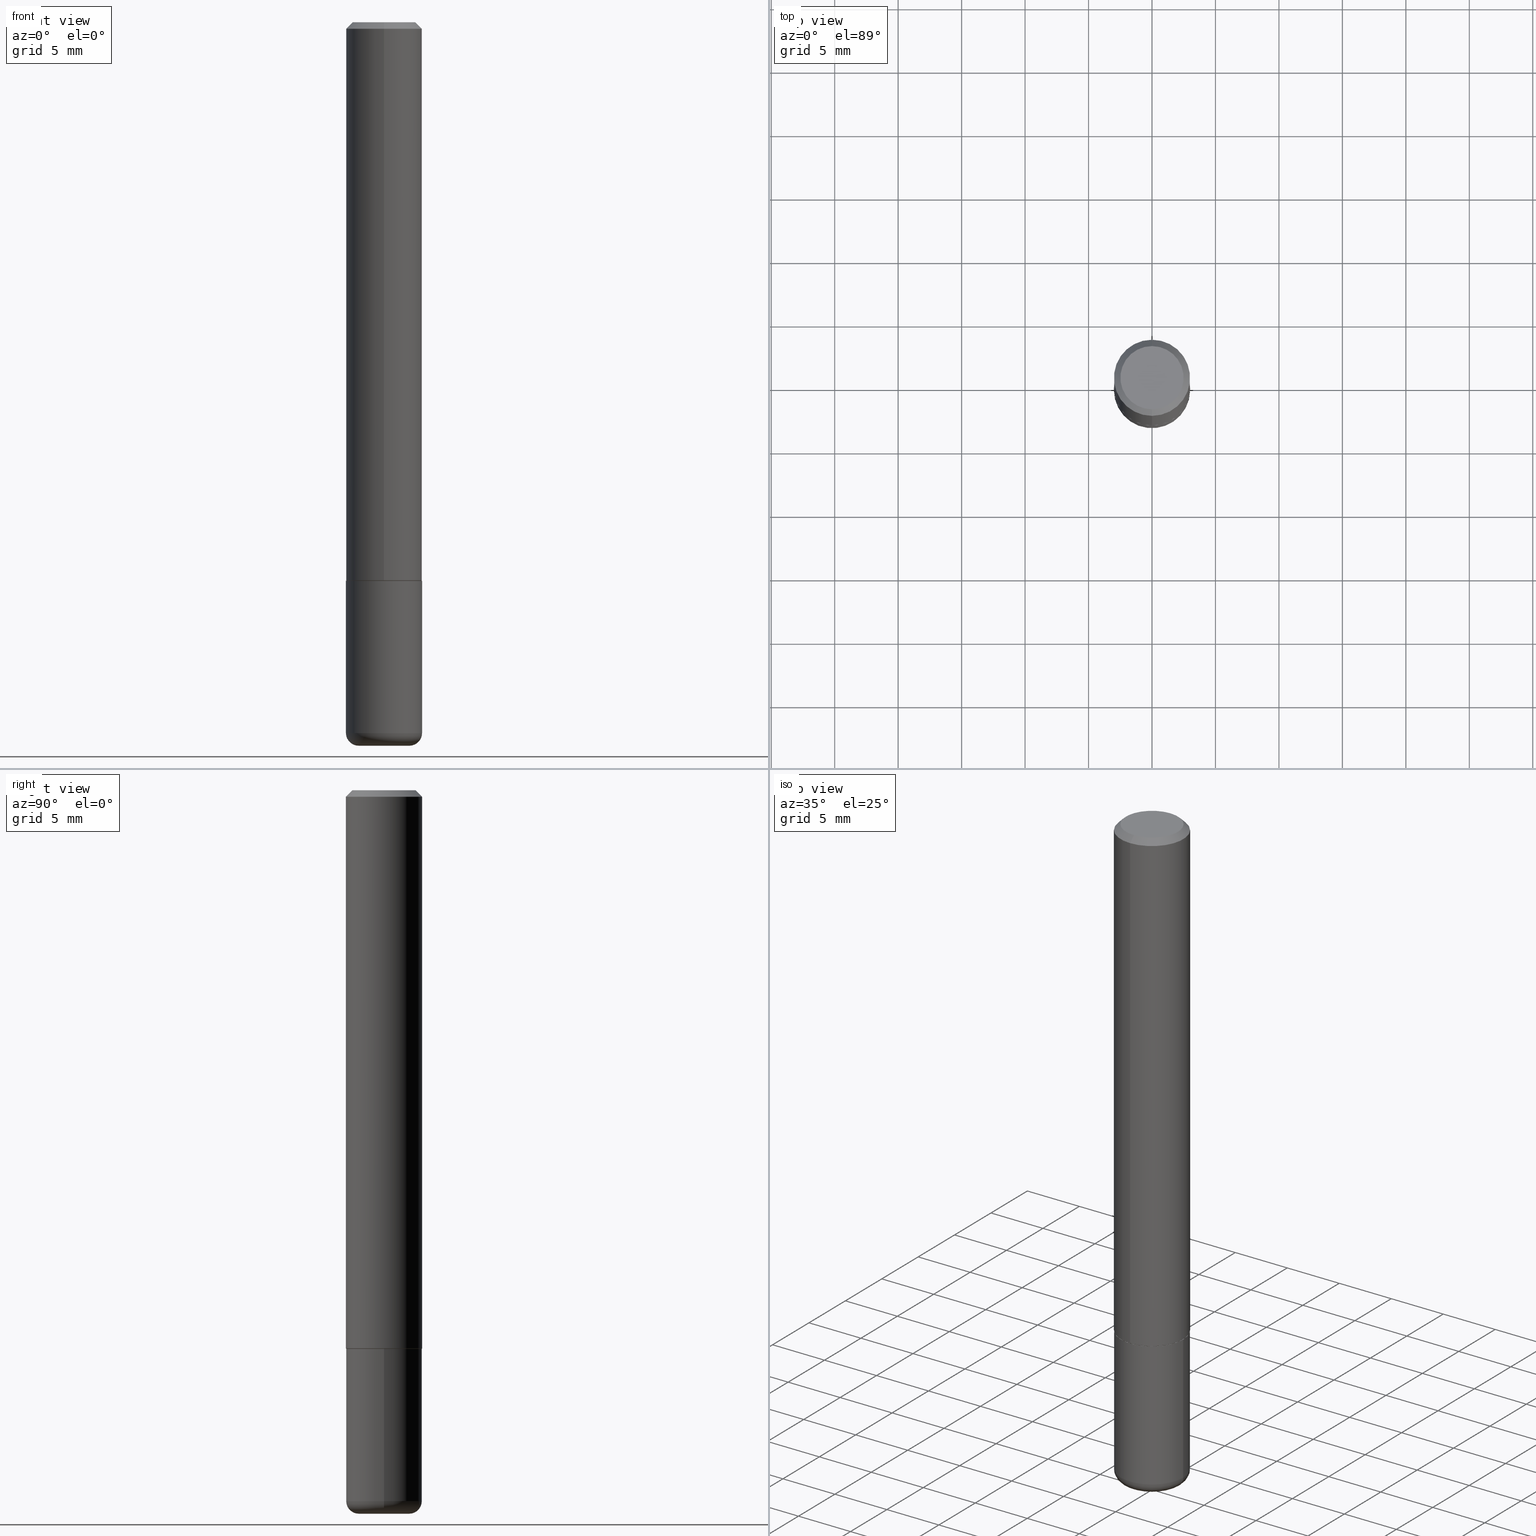
[diagram: canonical four-view strip — front | top / right | iso, engineering-drawing reading convention]
A machine part, canonical four-view strip (front | top / right | iso — engineering-drawing reading convention). The complete STEP part file that produces these views, byte-faithful:
ISO-10303-21;
HEADER;
FILE_DESCRIPTION (( 'STEP AP203' ),
    '1' );
FILE_NAME ('46855.STEP',
    '2024-03-05T04:08:07',
    ( '' ),
    ( '' ),
    'SwSTEP 2.0',
    'SolidWorks 2023',
    '' );
FILE_SCHEMA (( 'CONFIG_CONTROL_DESIGN' ));
ENDSEC;

DATA;
#1 = LENGTH_MEASURE_WITH_UNIT ( LENGTH_MEASURE( 0.02539999999999999897 ), #71 );
#2 = TOROIDAL_SURFACE ( 'NONE', #266, 0.07870000000000000606, 0.03939999999999978936 ) ;
#3 = ORGANIZATION ( 'UNSPECIFIED', 'UNSPECIFIED', '' ) ;
#4 = PERSON_AND_ORGANIZATION_ROLE ( 'creator' ) ;
#5 = FACE_OUTER_BOUND ( 'NONE', #258, .T. ) ;
#6 = DIRECTION ( 'NONE',  ( -1.000000000000000000, 6.982962677686265922E-15, -4.876176775795935793E-29 ) ) ;
#7 = CIRCLE ( 'NONE', #339, 0.09810000000000038134 ) ;
#8 = VECTOR ( 'NONE', #156, 39.37007874015748143 ) ;
#9 = PERSON_AND_ORGANIZATION ( #19, #3 ) ;
#10 = DIRECTION ( 'NONE',  ( 7.105427357601001859E-15, 1.000000000000000000, -3.491481338843145583E-15 ) ) ;
#11 = ADVANCED_FACE ( 'NONE', ( #38 ), #133, .F. ) ;
#12 = CARTESIAN_POINT ( 'NONE',  ( -0.1181000000000000105, 8.391509709326783943E-16, -5.809262341591044484E-30 ) ) ;
#13 = CYLINDRICAL_SURFACE ( 'NONE', #270, 0.1181000000000000105 ) ;
#14 = CC_DESIGN_PERSON_AND_ORGANIZATION_ASSIGNMENT ( #9, #171, ( #367 ) ) ;
#15 = AXIS2_PLACEMENT_3D ( 'NONE', #41, #44, #75 ) ;
#16 = DIRECTION ( 'NONE',  ( -2.437558740731586288E-29, 3.502809002785596045E-15, 1.000000000000000000 ) ) ;
#17 = DIRECTION ( 'NONE',  ( -6.982962677686265922E-15, -1.000000000000000000, 3.502809002785596439E-15 ) ) ;
#18 = ORIENTED_EDGE ( 'NONE', *, *, #70, .F. ) ;
#19 = PERSON ( 'UNSPECIFIED', 'UNSPECIFIED', 'UNSPECIFIED', ('UNSPECIFIED'), ('UNSPECIFIED'), ('UNSPECIFIED') ) ;
#20 = FACE_OUTER_BOUND ( 'NONE', #187, .T. ) ;
#21 = ORIENTED_EDGE ( 'NONE', *, *, #144, .T. ) ;
#22 = DIRECTION ( 'NONE',  ( -2.437558740731586288E-29, 3.502809002785596045E-15, 1.000000000000000000 ) ) ;
#23 = CIRCLE ( 'NONE', #401, 0.03939999999999978936 ) ;
#24 = VERTEX_POINT ( 'NONE', #33 ) ;
#25 = CARTESIAN_POINT ( 'NONE',  ( 0.07870000000000000606, -8.384792435231810596E-15, -2.244099999999999540 ) ) ;
#26 = DIRECTION ( 'NONE',  ( 1.000000000000000000, -6.982962677686269077E-15, 0.000000000000000000 ) ) ;
#27 = ORIENTED_EDGE ( 'NONE', *, *, #159, .T. ) ;
#28 = ADVANCED_FACE ( 'NONE', ( #5 ), #32, .T. ) ;
#29 = AXIS2_PLACEMENT_3D ( 'NONE', #308, #139, #305 ) ;
#30 = APPLICATION_PROTOCOL_DEFINITION ( 'international standard', 'config_control_design', 1994, #237 ) ;
#31 = MECHANICAL_CONTEXT ( 'NONE', #237, 'mechanical' ) ;
#32 = CYLINDRICAL_SURFACE ( 'NONE', #34, 0.1181000000000000105 ) ;
#33 = CARTESIAN_POINT ( 'NONE',  ( 7.548582654578869366E-16, 0.09810000000000038134, -7.394859809198522899E-16 ) ) ;
#34 = AXIS2_PLACEMENT_3D ( 'NONE', #297, #269, #167 ) ;
#35 = ADVANCED_FACE ( 'NONE', ( #265 ), #103, .T. ) ;
#36 = AXIS2_PLACEMENT_3D ( 'NONE', #90, #315, #186 ) ;
#37 = PERSON_AND_ORGANIZATION ( #19, #3 ) ;
#38 = FACE_OUTER_BOUND ( 'NONE', #64, .T. ) ;
#39 = DIRECTION ( 'NONE',  ( 2.437558740731586288E-29, -3.502809002785596045E-15, -1.000000000000000000 ) ) ;
#40 = CC_DESIGN_PERSON_AND_ORGANIZATION_ASSIGNMENT ( #395, #244, ( #383 ) ) ;
#41 = CARTESIAN_POINT ( 'NONE',  ( 4.236285612954512392E-29, -6.048293123277981078E-15, -1.732299999999999951 ) ) ;
#42 = VERTEX_POINT ( 'NONE', #145 ) ;
#43 = APPROVAL_ROLE ( '' ) ;
#44 = DIRECTION ( 'NONE',  ( -2.445468806185136597E-29, 3.491481338843145583E-15, 1.000000000000000000 ) ) ;
#45 = PERSON_AND_ORGANIZATION ( #19, #3 ) ;
#46 = FACE_OUTER_BOUND ( 'NONE', #194, .T. ) ;
#47 = ADVANCED_FACE ( 'NONE', ( #149 ), #13, .T. ) ;
#48 = SHAPE_DEFINITION_REPRESENTATION ( #282, #361 ) ;
#49 = FACE_OUTER_BOUND ( 'NONE', #158, .T. ) ;
#50 = VERTEX_POINT ( 'NONE', #78 ) ;
#51 = LOCAL_TIME ( 23, 8, 7.000000000000000000, #278 ) ;
#52 = DIRECTION ( 'NONE',  ( -4.937700262165053702E-15, -0.7071067811866175168, 0.7071067811864775177 ) ) ;
#53 = CARTESIAN_POINT ( 'NONE',  ( 0.07870000000000000606, -8.247228070481392959E-15, -2.204700000000000326 ) ) ;
#54 = EDGE_LOOP ( 'NONE', ( #223, #100, #241, #174 ) ) ;
#55 = PRODUCT_RELATED_PRODUCT_CATEGORY ( 'detail', '', ( #405 ) ) ;
#56 = DIRECTION ( 'NONE',  ( 2.437558740731586288E-29, -3.502809002785596045E-15, -1.000000000000000000 ) ) ;
#57 = ORIENTED_EDGE ( 'NONE', *, *, #84, .T. ) ;
#58 = CARTESIAN_POINT ( 'NONE',  ( 5.487876547960064752E-29, -7.835233272497900762E-15, -2.244099999999999540 ) ) ;
#59 = AXIS2_PLACEMENT_3D ( 'NONE', #216, #119, #412 ) ;
#60 = VERTEX_POINT ( 'NONE', #247 ) ;
#61 = CARTESIAN_POINT ( 'NONE',  ( -0.1180999999999998995, -6.858517936814806506E-15, -2.204700000000000326 ) ) ;
#62 = ORIENTED_EDGE ( 'NONE', *, *, #390, .F. ) ;
#63 = CARTESIAN_POINT ( 'NONE',  ( 4.222583006569326583E-29, -6.067916035525488770E-15, -1.732299999999999951 ) ) ;
#64 = EDGE_LOOP ( 'NONE', ( #397, #112 ) ) ;
#65 = DIRECTION ( 'NONE',  ( 0.000000000000000000, 0.000000000000000000, 1.000000000000000000 ) ) ;
#66 = CIRCLE ( 'NONE', #302, 0.09810000000000038134 ) ;
#67 = LOCAL_TIME ( 23, 8, 7.000000000000000000, #360 ) ;
#68 = DIRECTION ( 'NONE',  ( 1.000000000000000000, 0.000000000000000000, 0.000000000000000000 ) ) ;
#69 = PERSON_AND_ORGANIZATION ( #19, #3 ) ;
#70 = EDGE_CURVE ( 'NONE', #225, #287, #108, .T. ) ;
#71 =( LENGTH_UNIT ( ) NAMED_UNIT ( * ) SI_UNIT ( $, .METRE. ) );
#72 = CONICAL_SURFACE ( 'NONE', #414, 0.1171000000000000513, 0.7853981633975507526 ) ;
#73 = DATE_AND_TIME ( #202, #79 ) ;
#74 = EDGE_CURVE ( 'NONE', #24, #225, #242, .T. ) ;
#75 = DIRECTION ( 'NONE',  ( 1.000000000000000000, -6.982962677686262766E-15, 0.000000000000000000 ) ) ;
#76 = ORIENTED_EDGE ( 'NONE', *, *, #226, .T. ) ;
#77 = PERSON_AND_ORGANIZATION ( #19, #3 ) ;
#78 = CARTESIAN_POINT ( 'NONE',  ( -7.416198335591035884E-16, -0.09810000000000038134, -5.223485457331552221E-17 ) ) ;
#79 = LOCAL_TIME ( 23, 8, 7.000000000000000000, #306 ) ;
#80 = DATE_AND_TIME ( #148, #51 ) ;
#81 = PLANE ( 'NONE',  #285 ) ;
#82 = APPROVAL_STATUS ( 'not_yet_approved' ) ;
#83 = CARTESIAN_POINT ( 'NONE',  ( 9.649330213878425862E-45, -1.386623435129200920E-30, -3.958604177465838290E-16 ) ) ;
#84 = EDGE_CURVE ( 'NONE', #319, #42, #199, .T. ) ;
#85 = ORIENTED_EDGE ( 'NONE', *, *, #416, .F. ) ;
#86 = DESIGN_CONTEXT ( 'detailed design', #188, 'design' ) ;
#87 = DIRECTION ( 'NONE',  ( -6.982962677686265922E-15, -1.000000000000000000, 3.505890868245044514E-15 ) ) ;
#88 = CLOSED_SHELL ( 'NONE', ( #398, #262, #245, #92, #35, #317, #182, #11 ) ) ;
#89 = AXIS2_PLACEMENT_3D ( 'NONE', #310, #56, #349 ) ;
#90 = CARTESIAN_POINT ( 'NONE',  ( 4.220145447828595278E-29, -6.064413226522701602E-15, -1.731299999999999839 ) ) ;
#91 = ORIENTED_EDGE ( 'NONE', *, *, #135, .F. ) ;
#92 = ADVANCED_FACE ( 'NONE', ( #46 ), #296, .T. ) ;
#93 = CARTESIAN_POINT ( 'NONE',  ( 9.649330213878425862E-45, -1.386623435129200920E-30, -3.958604177465838290E-16 ) ) ;
#94 = ORIENTED_EDGE ( 'NONE', *, *, #169, .T. ) ;
#95 = LINE ( 'NONE', #406, #8 ) ;
#96 = ORIENTED_EDGE ( 'NONE', *, *, #203, .F. ) ;
#97 = AXIS2_PLACEMENT_3D ( 'NONE', #179, #362, #6 ) ;
#98 = DIRECTION ( 'NONE',  ( -6.982962677686266711E-15, -1.000000000000000000, 4.665837734695579875E-15 ) ) ;
#99 = ADVANCED_FACE ( 'NONE', ( #111 ), #129, .T. ) ;
#100 = ORIENTED_EDGE ( 'NONE', *, *, #254, .T. ) ;
#101 = DIRECTION ( 'NONE',  ( -2.437558740731586288E-29, 3.502809002785596045E-15, 1.000000000000000000 ) ) ;
#102 = EDGE_LOOP ( 'NONE', ( #193, #163, #327, #215 ) ) ;
#103 = CYLINDRICAL_SURFACE ( 'NONE', #140, 0.1181000000000001632 ) ;
#104 = CC_DESIGN_DATE_AND_TIME_ASSIGNMENT ( #399, #209, ( #367 ) ) ;
#105 = PERSON_AND_ORGANIZATION ( #19, #3 ) ;
#106 = PERSON_AND_ORGANIZATION_ROLE ( 'design_owner' ) ;
#107 = EDGE_CURVE ( 'NONE', #153, #378, #277, .T. ) ;
#108 = CIRCLE ( 'NONE', #382, 0.1181000000000000383 ) ;
#109 = LINE ( 'NONE', #200, #259 ) ;
#110 = CALENDAR_DATE ( 2024, 4, 3 ) ;
#111 = FACE_OUTER_BOUND ( 'NONE', #120, .T. ) ;
#112 = ORIENTED_EDGE ( 'NONE', *, *, #195, .T. ) ;
#113 = LINE ( 'NONE', #365, #333 ) ;
#114 = AXIS2_PLACEMENT_3D ( 'NONE', #213, #10, #400 ) ;
#115 = DATE_TIME_ROLE ( 'creation_date' ) ;
#116 = ADVANCED_FACE ( 'NONE', ( #49 ), #81, .F. ) ;
#117 = CARTESIAN_POINT ( 'NONE',  ( 8.246878922347486570E-16, 0.1180999999999999689, -0.02000000000000048961 ) ) ;
#118 = DIRECTION ( 'NONE',  ( -2.445468806185136597E-29, 3.491481338843145583E-15, 1.000000000000000000 ) ) ;
#119 = DIRECTION ( 'NONE',  ( -2.437558740731586288E-29, 3.502809002785596045E-15, 1.000000000000000000 ) ) ;
#120 = EDGE_LOOP ( 'NONE', ( #381, #332, #280, #325 ) ) ;
#121 = APPROVAL ( #165, 'UNSPECIFIED' ) ;
#122 = CIRCLE ( 'NONE', #322, 0.1180999999999999966 ) ;
#123 = DIRECTION ( 'NONE',  ( -6.982962677686265922E-15, -1.000000000000000000, 4.626330217890357503E-15 ) ) ;
#124 = ORIENTED_EDGE ( 'NONE', *, *, #84, .F. ) ;
#125 = ORIENTED_EDGE ( 'NONE', *, *, #107, .F. ) ;
#126 = DIRECTION ( 'NONE',  ( 5.024295867788576727E-15, 0.7071067811866224018, 0.7071067811864726327 ) ) ;
#127 = ORIENTED_EDGE ( 'NONE', *, *, #177, .F. ) ;
#128 = MANIFOLD_SOLID_BREP ( 'Body-Move/Copy2[1]', #295 ) ;
#129 = TOROIDAL_SURFACE ( 'NONE', #359, 0.07870000000000000606, 0.03939999999999978936 ) ;
#130 = CARTESIAN_POINT ( 'NONE',  ( 0.000000000000000000, 0.000000000000000000, 0.000000000000000000 ) ) ;
#131 = CIRCLE ( 'NONE', #348, 0.07870000000000000606 ) ;
#132 = ORIENTED_EDGE ( 'NONE', *, *, #191, .F. ) ;
#133 = PLANE ( 'NONE',  #196 ) ;
#134 = CALENDAR_DATE ( 2024, 4, 3 ) ;
#135 = EDGE_CURVE ( 'NONE', #24, #50, #7, .T. ) ;
#136 = AXIS2_PLACEMENT_3D ( 'NONE', #402, #39, #366 ) ;
#137 = DATE_AND_TIME ( #134, #168 ) ;
#138 = APPROVAL ( #82, 'UNSPECIFIED' ) ;
#139 = DIRECTION ( 'NONE',  ( -2.445468806185136597E-29, 3.491481338843145583E-15, 1.000000000000000000 ) ) ;
#140 = AXIS2_PLACEMENT_3D ( 'NONE', #229, #234, #292 ) ;
#141 = CARTESIAN_POINT ( 'NONE',  ( 4.236285612954512392E-29, -6.048293123277981078E-15, -1.732299999999999951 ) ) ;
#142 = DATE_AND_TIME ( #110, #251 ) ;
#143 = DIRECTION ( 'NONE',  ( -4.851104656540959542E-15, -0.7071067811865493491, -0.7071067811865454633 ) ) ;
#144 = EDGE_CURVE ( 'NONE', #42, #319, #146, .T. ) ;
#145 = CARTESIAN_POINT ( 'NONE',  ( 0.1181000000000000383, -6.872981015512729341E-15, -1.732299999999999951 ) ) ;
#146 = CIRCLE ( 'NONE', #227, 0.1181000000000000383 ) ;
#147 = AXIS2_PLACEMENT_3D ( 'NONE', #391, #357, #268 ) ;
#148 = CALENDAR_DATE ( 2024, 4, 3 ) ;
#149 = FACE_OUTER_BOUND ( 'NONE', #363, .T. ) ;
#150 = ADVANCED_FACE ( 'NONE', ( #336 ), #337, .T. ) ;
#151 = CARTESIAN_POINT ( 'NONE',  ( 5.391525076996371277E-29, -7.697668907747483125E-15, -2.204700000000000326 ) ) ;
#152 = CARTESIAN_POINT ( 'NONE',  ( 8.391509709327013699E-16, 0.1180999999999942790, -1.731300000000000505 ) ) ;
#153 = VERTEX_POINT ( 'NONE', #178 ) ;
#154 = CIRCLE ( 'NONE', #29, 0.1180999999999999966 ) ;
#155 = AXIS2_PLACEMENT_3D ( 'NONE', #313, #22, #98 ) ;
#156 = DIRECTION ( 'NONE',  ( -2.437558740731586568E-29, 3.502809002785596045E-15, 1.000000000000000000 ) ) ;
#157 = CARTESIAN_POINT ( 'NONE',  ( 8.320455435751197874E-16, 0.1170999999999939867, -1.732300000000000617 ) ) ;
#158 = EDGE_LOOP ( 'NONE', ( #21, #57 ) ) ;
#159 = EDGE_CURVE ( 'NONE', #249, #42, #113, .T. ) ;
#160 = LINE ( 'NONE', #288, #243 ) ;
#161 = EDGE_LOOP ( 'NONE', ( #125, #350, #76, #85 ) ) ;
#162 =( GEOMETRIC_REPRESENTATION_CONTEXT ( 3 ) GLOBAL_UNCERTAINTY_ASSIGNED_CONTEXT ( ( #372 ) ) GLOBAL_UNIT_ASSIGNED_CONTEXT ( ( #323, #198, #385 ) ) REPRESENTATION_CONTEXT ( 'NONE', 'WORKASPACE' ) );
#163 = ORIENTED_EDGE ( 'NONE', *, *, #177, .T. ) ;
#164 = EDGE_CURVE ( 'NONE', #249, #378, #154, .T. ) ;
#165 = APPROVAL_STATUS ( 'not_yet_approved' ) ;
#166 = CIRCLE ( 'NONE', #59, 0.1171000000000000513 ) ;
#167 = DIRECTION ( 'NONE',  ( 1.000000000000000000, -6.982962677686267499E-15, 4.876176775795936353E-29 ) ) ;
#168 = LOCAL_TIME ( 23, 8, 7.000000000000000000, #298 ) ;
#169 = EDGE_CURVE ( 'NONE', #378, #319, #271, .T. ) ;
#170 = DIRECTION ( 'NONE',  ( 2.437558740731586008E-29, -3.502809002785596045E-15, -1.000000000000000000 ) ) ;
#171 = PERSON_AND_ORGANIZATION_ROLE ( 'classification_officer' ) ;
#172 = DIRECTION ( 'NONE',  ( -2.445468806185136597E-29, 3.491481338843145583E-15, 1.000000000000000000 ) ) ;
#173 = PLANE ( 'NONE',  #309 ) ;
#174 = ORIENTED_EDGE ( 'NONE', *, *, #328, .F. ) ;
#175 = AXIS2_PLACEMENT_3D ( 'NONE', #380, #384, #375 ) ;
#176 = CARTESIAN_POINT ( 'NONE',  ( 0.000000000000000000, 0.000000000000000000, 0.000000000000000000 ) ) ;
#177 = EDGE_CURVE ( 'NONE', #50, #287, #109, .T. ) ;
#178 = CARTESIAN_POINT ( 'NONE',  ( -0.07870000000000000606, -7.067277038134755422E-15, -2.244099999999999540 ) ) ;
#179 = CARTESIAN_POINT ( 'NONE',  ( 1.092743596228401244E-28, -4.547459069109707912E-17, -2.244099999999999540 ) ) ;
#180 = VECTOR ( 'NONE', #52, 39.37007874015748143 ) ;
#181 = CIRCLE ( 'NONE', #36, 0.1181000000000003158 ) ;
#182 = ADVANCED_FACE ( 'NONE', ( #331 ), #173, .F. ) ;
#183 = LINE ( 'NONE', #261, #180 ) ;
#184 = DIRECTION ( 'NONE',  ( 1.000000000000000000, -6.982962677686268288E-15, 4.883557194083112901E-29 ) ) ;
#185 = ORIENTED_EDGE ( 'NONE', *, *, #379, .T. ) ;
#186 = DIRECTION ( 'NONE',  ( -6.982962677686265922E-15, -1.000000000000000000, 4.626330217890357503E-15 ) ) ;
#187 = EDGE_LOOP ( 'NONE', ( #96, #263, #354, #413 ) ) ;
#188 = APPLICATION_CONTEXT ( 'configuration controlled 3d designs of mechanical parts and assemblies' ) ;
#189 = DIRECTION ( 'NONE',  ( -2.445468806185136597E-29, 3.491481338843145583E-15, 1.000000000000000000 ) ) ;
#190 = ORIENTED_EDGE ( 'NONE', *, *, #218, .F. ) ;
#191 = EDGE_CURVE ( 'NONE', #316, #321, #183, .T. ) ;
#192 = CARTESIAN_POINT ( 'NONE',  ( 4.220145447828595278E-29, -6.064413226522701602E-15, -1.731299999999999839 ) ) ;
#193 = ORIENTED_EDGE ( 'NONE', *, *, #195, .F. ) ;
#194 = EDGE_LOOP ( 'NONE', ( #127, #91, #407, #220 ) ) ;
#195 = EDGE_CURVE ( 'NONE', #50, #24, #66, .T. ) ;
#196 = AXIS2_PLACEMENT_3D ( 'NONE', #418, #170, #329 ) ;
#197 = CC_DESIGN_APPROVAL ( #138, ( #383 ) ) ;
#198 =( NAMED_UNIT ( * ) PLANE_ANGLE_UNIT ( ) SI_UNIT ( $, .RADIAN. ) );
#199 = CIRCLE ( 'NONE', #15, 0.1181000000000000383 ) ;
#200 = CARTESIAN_POINT ( 'NONE',  ( -8.102248135368175393E-16, -0.1181000000000001077, -0.01999999999999966388 ) ) ;
#201 = ORIENTED_EDGE ( 'NONE', *, *, #218, .T. ) ;
#202 = CALENDAR_DATE ( 2024, 4, 3 ) ;
#203 = EDGE_CURVE ( 'NONE', #60, #217, #373, .T. ) ;
#204 = CARTESIAN_POINT ( 'NONE',  ( 4.222583006569326583E-29, -6.067916035525488770E-15, -1.732299999999999951 ) ) ;
#205 = CIRCLE ( 'NONE', #347, 0.1171000000000000513 ) ;
#206 = AXIS2_PLACEMENT_3D ( 'NONE', #130, #338, #17 ) ;
#207 = CALENDAR_DATE ( 2024, 4, 3 ) ;
#208 = DIRECTION ( 'NONE',  ( 2.438088387897960049E-29, -3.491481338843145188E-15, -1.000000000000000000 ) ) ;
#209 = DATE_TIME_ROLE ( 'classification_date' ) ;
#210 = CARTESIAN_POINT ( 'NONE',  ( 4.236285612954512392E-29, -6.048293123277981078E-15, -1.732299999999999951 ) ) ;
#211 = ORIENTED_EDGE ( 'NONE', *, *, #169, .F. ) ;
#212 = EDGE_CURVE ( 'NONE', #60, #316, #205, .T. ) ;
#213 = CARTESIAN_POINT ( 'NONE',  ( -0.07870000000000000606, -7.138471774704284335E-15, -2.204700000000000326 ) ) ;
#214 = CARTESIAN_POINT ( 'NONE',  ( -8.177049295570199457E-16, -0.1171000000000061020, -1.732299999999999507 ) ) ;
#215 = ORIENTED_EDGE ( 'NONE', *, *, #74, .F. ) ;
#216 = CARTESIAN_POINT ( 'NONE',  ( 4.222583006569326583E-29, -6.067916035525488770E-15, -1.732299999999999951 ) ) ;
#217 = VERTEX_POINT ( 'NONE', #152 ) ;
#218 = EDGE_CURVE ( 'NONE', #316, #60, #166, .T. ) ;
#219 = DIRECTION ( 'NONE',  ( -2.437558740731586288E-29, 3.502809002785596045E-15, 1.000000000000000000 ) ) ;
#220 = ORIENTED_EDGE ( 'NONE', *, *, #70, .T. ) ;
#221 = AXIS2_PLACEMENT_3D ( 'NONE', #192, #101, #123 ) ;
#222 = CARTESIAN_POINT ( 'NONE',  ( -0.1181000000000000522, -6.033830044580054299E-15, -1.732299999999999951 ) ) ;
#223 = ORIENTED_EDGE ( 'NONE', *, *, #307, .T. ) ;
#224 = APPLICATION_PROTOCOL_DEFINITION ( 'international standard', 'config_control_design', 1994, #188 ) ;
#225 = VERTEX_POINT ( 'NONE', #343 ) ;
#226 = EDGE_CURVE ( 'NONE', #311, #249, #23, .T. ) ;
#227 = AXIS2_PLACEMENT_3D ( 'NONE', #210, #172, #303 ) ;
#228 = DIRECTION ( 'NONE',  ( -2.445468806185136597E-29, 3.491481338843145583E-15, 1.000000000000000000 ) ) ;
#229 = CARTESIAN_POINT ( 'NONE',  ( 0.000000000000000000, 0.000000000000000000, 0.000000000000000000 ) ) ;
#230 = DIRECTION ( 'NONE',  ( 1.000000000000000000, -6.982962677686265133E-15, 0.000000000000000000 ) ) ;
#231 = DIMENSIONAL_EXPONENTS ( 1.000000000000000000, 0.000000000000000000, 0.000000000000000000, 0.000000000000000000, 0.000000000000000000, 0.000000000000000000, 0.000000000000000000 ) ;
#232 = CC_DESIGN_DATE_AND_TIME_ASSIGNMENT ( #142, #115, ( #284 ) ) ;
#233 = SECURITY_CLASSIFICATION_LEVEL ( 'unclassified' ) ;
#234 = DIRECTION ( 'NONE',  ( -2.437558740731586288E-29, 3.502809002785596045E-15, 1.000000000000000000 ) ) ;
#235 = APPROVAL_PERSON_ORGANIZATION ( #69, #121, #417 ) ;
#236 = DIRECTION ( 'NONE',  ( 1.000000000000000000, -6.982962677686267499E-15, 4.876176775795936353E-29 ) ) ;
#237 = APPLICATION_CONTEXT ( 'configuration controlled 3d designs of mechanical parts and assemblies' ) ;
#238 = ADVANCED_FACE ( 'NONE', ( #281 ), #2, .T. ) ;
#239 = APPROVAL_STATUS ( 'not_yet_approved' ) ;
#240 = DIRECTION ( 'NONE',  ( -2.437558740731586288E-29, 3.502809002785596045E-15, 1.000000000000000000 ) ) ;
#241 = ORIENTED_EDGE ( 'NONE', *, *, #403, .F. ) ;
#242 = LINE ( 'NONE', #117, #392 ) ;
#243 = VECTOR ( 'NONE', #286, 39.37007874015748143 ) ;
#244 = PERSON_AND_ORGANIZATION_ROLE ( 'creator' ) ;
#245 = ADVANCED_FACE ( 'NONE', ( #341 ), #326, .T. ) ;
#246 = CARTESIAN_POINT ( 'NONE',  ( 4.875117481463191354E-31, -7.005618005571218813E-17, -0.02000000000000007674 ) ) ;
#247 = CARTESIAN_POINT ( 'NONE',  ( 8.355982572539211790E-16, 0.1170999999999939867, -1.732300000000000617 ) ) ;
#248 = DIRECTION ( 'NONE',  ( -6.982962677686266711E-15, -1.000000000000000000, 3.491481338843145583E-15 ) ) ;
#249 = VERTEX_POINT ( 'NONE', #312 ) ;
#250 = VECTOR ( 'NONE', #393, 39.37007874015748143 ) ;
#251 = LOCAL_TIME ( 23, 8, 7.000000000000000000, #351 ) ;
#252 = DIRECTION ( 'NONE',  ( -6.982962677686265922E-15, -1.000000000000000000, 3.502809002785596045E-15 ) ) ;
#253 = ORIENTED_EDGE ( 'NONE', *, *, #328, .T. ) ;
#254 = EDGE_CURVE ( 'NONE', #217, #225, #160, .T. ) ;
#255 = CARTESIAN_POINT ( 'NONE',  ( -8.102248135368175393E-16, -0.1181000000000001077, -0.01999999999999966388 ) ) ;
#256 = ORIENTED_EDGE ( 'NONE', *, *, #307, .F. ) ;
#257 = CARTESIAN_POINT ( 'NONE',  ( 4.222583006569326583E-29, -6.067916035525488770E-15, -1.732299999999999951 ) ) ;
#258 = EDGE_LOOP ( 'NONE', ( #211, #283, #27, #124 ) ) ;
#259 = VECTOR ( 'NONE', #143, 39.37007874015748854 ) ;
#260 = CONICAL_SURFACE ( 'NONE', #155, 0.1171000000000000513, 0.7853981633975507526 ) ;
#261 = CARTESIAN_POINT ( 'NONE',  ( -8.177049295570199457E-16, -0.1171000000000061020, -1.732299999999999507 ) ) ;
#262 = ADVANCED_FACE ( 'NONE', ( #290 ), #279, .T. ) ;
#263 = ORIENTED_EDGE ( 'NONE', *, *, #212, .T. ) ;
#264 = APPROVAL_DATE_TIME ( #137, #121 ) ;
#265 = FACE_OUTER_BOUND ( 'NONE', #376, .T. ) ;
#266 = AXIS2_PLACEMENT_3D ( 'NONE', #151, #345, #184 ) ;
#267 = AXIS2_PLACEMENT_3D ( 'NONE', #353, #65, #68 ) ;
#268 = DIRECTION ( 'NONE',  ( -6.982962677686265922E-15, -1.000000000000000000, 3.505890868245044514E-15 ) ) ;
#269 = DIRECTION ( 'NONE',  ( -2.445468806185136597E-29, 3.491481338843145583E-15, 1.000000000000000000 ) ) ;
#270 = AXIS2_PLACEMENT_3D ( 'NONE', #176, #118, #236 ) ;
#271 = LINE ( 'NONE', #12, #250 ) ;
#272 = CIRCLE ( 'NONE', #175, 0.07870000000000000606 ) ;
#273 = CARTESIAN_POINT ( 'NONE',  ( 5.391525076996371277E-29, -7.697668907747483125E-15, -2.204700000000000326 ) ) ;
#274 = PERSON_AND_ORGANIZATION ( #19, #3 ) ;
#275 = DIRECTION ( 'NONE',  ( -2.437558740731586008E-29, 3.502809002785596045E-15, 1.000000000000000000 ) ) ;
#276 = DIRECTION ( 'NONE',  ( -1.000000000000000000, 6.982962677686265922E-15, -4.876176775795935793E-29 ) ) ;
#277 = CIRCLE ( 'NONE', #114, 0.03939999999999978936 ) ;
#278 = COORDINATED_UNIVERSAL_TIME_OFFSET ( 5, 0, .BEHIND. ) ;
#279 = CYLINDRICAL_SURFACE ( 'NONE', #206, 0.1181000000000001632 ) ;
#280 = ORIENTED_EDGE ( 'NONE', *, *, #164, .F. ) ;
#281 = FACE_OUTER_BOUND ( 'NONE', #161, .T. ) ;
#282 = PRODUCT_DEFINITION_SHAPE ( 'NONE', 'NONE',  #284 ) ;
#283 = ORIENTED_EDGE ( 'NONE', *, *, #416, .T. ) ;
#284 = PRODUCT_DEFINITION ( 'UNKNOWN', '', #383, #86 ) ;
#285 = AXIS2_PLACEMENT_3D ( 'NONE', #141, #208, #276 ) ;
#286 = DIRECTION ( 'NONE',  ( -2.437558740731586568E-29, 3.502809002785596045E-15, 1.000000000000000000 ) ) ;
#287 = VERTEX_POINT ( 'NONE', #255 ) ;
#288 = CARTESIAN_POINT ( 'NONE',  ( 8.391509709326793804E-16, 0.1181000000000001632, -4.136817432289794904E-16 ) ) ;
#289 = EDGE_LOOP ( 'NONE', ( #201, #344, #256, #132 ) ) ;
#290 = FACE_OUTER_BOUND ( 'NONE', #54, .T. ) ;
#291 = CC_DESIGN_SECURITY_CLASSIFICATION ( #367, ( #383 ) ) ;
#292 = DIRECTION ( 'NONE',  ( -6.982962677686265922E-15, -1.000000000000000000, 3.502809002785596439E-15 ) ) ;
#293 = FACE_OUTER_BOUND ( 'NONE', #289, .T. ) ;
#294 = EDGE_CURVE ( 'NONE', #153, #311, #272, .T. ) ;
#295 = CLOSED_SHELL ( 'NONE', ( #47, #99, #116, #28, #238, #150 ) ) ;
#296 = CONICAL_SURFACE ( 'NONE', #136, 0.1181000000000000383, 0.7853981633974476129 ) ;
#297 = CARTESIAN_POINT ( 'NONE',  ( 0.000000000000000000, 0.000000000000000000, 0.000000000000000000 ) ) ;
#298 = COORDINATED_UNIVERSAL_TIME_OFFSET ( 5, 0, .BEHIND. ) ;
#299 = PERSON_AND_ORGANIZATION_ROLE ( 'design_supplier' ) ;
#300 = DIRECTION ( 'NONE',  ( -2.445468806185136597E-29, 3.491481338843145583E-15, 1.000000000000000000 ) ) ;
#301 = APPROVAL_ROLE ( '' ) ;
#302 = AXIS2_PLACEMENT_3D ( 'NONE', #93, #404, #409 ) ;
#303 = DIRECTION ( 'NONE',  ( 1.000000000000000000, -6.982962677686262766E-15, 0.000000000000000000 ) ) ;
#304 = APPROVAL_PERSON_ORGANIZATION ( #45, #358, #43 ) ;
#305 = DIRECTION ( 'NONE',  ( 1.000000000000000000, -6.982962677686265133E-15, 0.000000000000000000 ) ) ;
#306 = COORDINATED_UNIVERSAL_TIME_OFFSET ( 5, 0, .BEHIND. ) ;
#307 = EDGE_CURVE ( 'NONE', #321, #217, #181, .T. ) ;
#308 = CARTESIAN_POINT ( 'NONE',  ( 5.391525076996371277E-29, -7.697668907747483125E-15, -2.204700000000000326 ) ) ;
#309 = AXIS2_PLACEMENT_3D ( 'NONE', #204, #275, #252 ) ;
#310 = CARTESIAN_POINT ( 'NONE',  ( 4.875117481463191354E-31, -7.005618005571218813E-17, -0.02000000000000007674 ) ) ;
#311 = VERTEX_POINT ( 'NONE', #25 ) ;
#312 = CARTESIAN_POINT ( 'NONE',  ( 0.1180999999999998995, -8.522356799982231388E-15, -2.204700000000000326 ) ) ;
#313 = CARTESIAN_POINT ( 'NONE',  ( 4.222583006569326583E-29, -6.067916035525488770E-15, -1.732299999999999951 ) ) ;
#314 = ORIENTED_EDGE ( 'NONE', *, *, #294, .F. ) ;
#315 = DIRECTION ( 'NONE',  ( -2.437558740731586288E-29, 3.502809002785596045E-15, 1.000000000000000000 ) ) ;
#316 = VERTEX_POINT ( 'NONE', #214 ) ;
#317 = ADVANCED_FACE ( 'NONE', ( #20 ), #260, .T. ) ;
#318 = DIRECTION ( 'NONE',  ( 1.000000000000000000, -6.982962677686266711E-15, 0.000000000000000000 ) ) ;
#319 = VERTEX_POINT ( 'NONE', #222 ) ;
#320 = CARTESIAN_POINT ( 'NONE',  ( 5.391525076996371277E-29, -7.697668907747483125E-15, -2.204700000000000326 ) ) ;
#321 = VERTEX_POINT ( 'NONE', #377 ) ;
#322 = AXIS2_PLACEMENT_3D ( 'NONE', #320, #228, #230 ) ;
#323 =( CONVERSION_BASED_UNIT ( 'INCH', #1 ) LENGTH_UNIT ( ) NAMED_UNIT ( #231 ) );
#324 = CC_DESIGN_PERSON_AND_ORGANIZATION_ASSIGNMENT ( #105, #4, ( #284 ) ) ;
#325 = ORIENTED_EDGE ( 'NONE', *, *, #226, .F. ) ;
#326 = CONICAL_SURFACE ( 'NONE', #89, 0.1181000000000000383, 0.7853981633974476129 ) ;
#327 = ORIENTED_EDGE ( 'NONE', *, *, #403, .T. ) ;
#328 = EDGE_CURVE ( 'NONE', #321, #287, #95, .T. ) ;
#329 = DIRECTION ( 'NONE',  ( 6.982962677686265922E-15, 1.000000000000000000, -3.502809002785596045E-15 ) ) ;
#330 = APPROVAL_DATE_TIME ( #80, #138 ) ;
#331 = FACE_OUTER_BOUND ( 'NONE', #369, .T. ) ;
#332 = ORIENTED_EDGE ( 'NONE', *, *, #107, .T. ) ;
#333 = VECTOR ( 'NONE', #334, 39.37007874015748143 ) ;
#334 = DIRECTION ( 'NONE',  ( -2.445468806185136877E-29, 3.491481338843145188E-15, 1.000000000000000000 ) ) ;
#335 = APPROVAL_PERSON_ORGANIZATION ( #77, #138, #301 ) ;
#336 = FACE_OUTER_BOUND ( 'NONE', #342, .T. ) ;
#337 = PLANE ( 'NONE',  #97 ) ;
#338 = DIRECTION ( 'NONE',  ( -2.437558740731586288E-29, 3.502809002785596045E-15, 1.000000000000000000 ) ) ;
#339 = AXIS2_PLACEMENT_3D ( 'NONE', #83, #240, #396 ) ;
#340 = CIRCLE ( 'NONE', #221, 0.1181000000000003158 ) ;
#341 = FACE_OUTER_BOUND ( 'NONE', #102, .T. ) ;
#342 = EDGE_LOOP ( 'NONE', ( #62, #314 ) ) ;
#343 = CARTESIAN_POINT ( 'NONE',  ( 8.246878922347486570E-16, 0.1180999999999999689, -0.02000000000000048961 ) ) ;
#344 = ORIENTED_EDGE ( 'NONE', *, *, #203, .T. ) ;
#345 = DIRECTION ( 'NONE',  ( -2.445468806185136597E-29, 3.491481338843145583E-15, 1.000000000000000000 ) ) ;
#346 = ORIENTED_EDGE ( 'NONE', *, *, #212, .F. ) ;
#347 = AXIS2_PLACEMENT_3D ( 'NONE', #257, #219, #408 ) ;
#348 = AXIS2_PLACEMENT_3D ( 'NONE', #58, #189, #26 ) ;
#349 = DIRECTION ( 'NONE',  ( 6.982962677686265922E-15, 1.000000000000000000, -3.505890868245044514E-15 ) ) ;
#350 = ORIENTED_EDGE ( 'NONE', *, *, #294, .T. ) ;
#351 = COORDINATED_UNIVERSAL_TIME_OFFSET ( 5, 0, .BEHIND. ) ;
#352 = ORIENTED_EDGE ( 'NONE', *, *, #144, .F. ) ;
#353 = CARTESIAN_POINT ( 'NONE',  ( 0.000000000000000000, 0.000000000000000000, 0.000000000000000000 ) ) ;
#354 = ORIENTED_EDGE ( 'NONE', *, *, #191, .T. ) ;
#355 = CC_DESIGN_APPROVAL ( #358, ( #367 ) ) ;
#356 = CC_DESIGN_PERSON_AND_ORGANIZATION_ASSIGNMENT ( #37, #106, ( #405 ) ) ;
#357 = DIRECTION ( 'NONE',  ( -2.437558740731586288E-29, 3.502809002785596045E-15, 1.000000000000000000 ) ) ;
#358 = APPROVAL ( #239, 'UNSPECIFIED' ) ;
#359 = AXIS2_PLACEMENT_3D ( 'NONE', #273, #300, #370 ) ;
#360 = COORDINATED_UNIVERSAL_TIME_OFFSET ( 5, 0, .BEHIND. ) ;
#361 = ADVANCED_BREP_SHAPE_REPRESENTATION ( '46855', ( #128, #411, #267 ), #162 ) ;
#362 = DIRECTION ( 'NONE',  ( 2.438088387897960049E-29, -3.491481338843145188E-15, -1.000000000000000000 ) ) ;
#363 = EDGE_LOOP ( 'NONE', ( #394, #94, #352, #410 ) ) ;
#364 = APPROVAL_DATE_TIME ( #73, #358 ) ;
#365 = CARTESIAN_POINT ( 'NONE',  ( 0.1181000000000000105, -8.246878922347482626E-16, 5.758764772215001141E-30 ) ) ;
#366 = DIRECTION ( 'NONE',  ( 6.982962677686265922E-15, 1.000000000000000000, -3.505890868245044514E-15 ) ) ;
#367 = SECURITY_CLASSIFICATION ( '', '', #233 ) ;
#368 = DIRECTION ( 'NONE',  ( 4.937700262164543309E-15, 0.7071067811865444641, -0.7071067811865503483 ) ) ;
#369 = EDGE_LOOP ( 'NONE', ( #190, #346 ) ) ;
#370 = DIRECTION ( 'NONE',  ( 1.000000000000000000, -6.982962677686268288E-15, 4.883557194083112901E-29 ) ) ;
#371 = ORIENTED_EDGE ( 'NONE', *, *, #254, .F. ) ;
#372 = UNCERTAINTY_MEASURE_WITH_UNIT (LENGTH_MEASURE( 1.000000000000000082E-05 ), #323, 'distance_accuracy_value', 'NONE');
#373 = LINE ( 'NONE', #157, #388 ) ;
#374 = CIRCLE ( 'NONE', #147, 0.1181000000000000383 ) ;
#375 = DIRECTION ( 'NONE',  ( 1.000000000000000000, -6.982962677686269077E-15, 0.000000000000000000 ) ) ;
#376 = EDGE_LOOP ( 'NONE', ( #371, #185, #253, #18 ) ) ;
#377 = CARTESIAN_POINT ( 'NONE',  ( -8.246878922347080307E-16, -0.1181000000000063804, -1.731299999999999395 ) ) ;
#378 = VERTEX_POINT ( 'NONE', #61 ) ;
#379 = EDGE_CURVE ( 'NONE', #217, #321, #340, .T. ) ;
#380 = CARTESIAN_POINT ( 'NONE',  ( 5.487876547960064752E-29, -7.835233272497900762E-15, -2.244099999999999540 ) ) ;
#381 = ORIENTED_EDGE ( 'NONE', *, *, #390, .T. ) ;
#382 = AXIS2_PLACEMENT_3D ( 'NONE', #246, #16, #87 ) ;
#383 = PRODUCT_DEFINITION_FORMATION_WITH_SPECIFIED_SOURCE ( 'ANY', '', #405, .NOT_KNOWN. ) ;
#384 = DIRECTION ( 'NONE',  ( -2.445468806185136597E-29, 3.491481338843145583E-15, 1.000000000000000000 ) ) ;
#385 =( NAMED_UNIT ( * ) SI_UNIT ( $, .STERADIAN. ) SOLID_ANGLE_UNIT ( ) );
#386 = CC_DESIGN_PERSON_AND_ORGANIZATION_ASSIGNMENT ( #274, #299, ( #383 ) ) ;
#387 = DIRECTION ( 'NONE',  ( -2.437558740731586288E-29, 3.502809002785596045E-15, 1.000000000000000000 ) ) ;
#388 = VECTOR ( 'NONE', #126, 39.37007874015748143 ) ;
#389 = CC_DESIGN_APPROVAL ( #121, ( #284 ) ) ;
#390 = EDGE_CURVE ( 'NONE', #311, #153, #131, .T. ) ;
#391 = CARTESIAN_POINT ( 'NONE',  ( 4.875117481463191354E-31, -7.005618005571218813E-17, -0.02000000000000007674 ) ) ;
#392 = VECTOR ( 'NONE', #368, 39.37007874015748854 ) ;
#393 = DIRECTION ( 'NONE',  ( -2.445468806185136877E-29, 3.491481338843145188E-15, 1.000000000000000000 ) ) ;
#394 = ORIENTED_EDGE ( 'NONE', *, *, #164, .T. ) ;
#395 = PERSON_AND_ORGANIZATION ( #19, #3 ) ;
#396 = DIRECTION ( 'NONE',  ( -6.982962677686265922E-15, -1.000000000000000000, 3.502809002785596045E-15 ) ) ;
#397 = ORIENTED_EDGE ( 'NONE', *, *, #135, .T. ) ;
#398 = ADVANCED_FACE ( 'NONE', ( #293 ), #72, .T. ) ;
#399 = DATE_AND_TIME ( #207, #67 ) ;
#400 = DIRECTION ( 'NONE',  ( -1.000000000000000000, 7.105427357600989237E-15, 0.000000000000000000 ) ) ;
#401 = AXIS2_PLACEMENT_3D ( 'NONE', #53, #248, #318 ) ;
#402 = CARTESIAN_POINT ( 'NONE',  ( 4.875117481463191354E-31, -7.005618005571218813E-17, -0.02000000000000007674 ) ) ;
#403 = EDGE_CURVE ( 'NONE', #287, #225, #374, .T. ) ;
#404 = DIRECTION ( 'NONE',  ( -2.437558740731586288E-29, 3.502809002785596045E-15, 1.000000000000000000 ) ) ;
#405 = PRODUCT ( '46855', '46855', '', ( #31 ) ) ;
#406 = CARTESIAN_POINT ( 'NONE',  ( -8.246878922347491501E-16, -0.1181000000000001632, 4.136817432289794904E-16 ) ) ;
#407 = ORIENTED_EDGE ( 'NONE', *, *, #74, .T. ) ;
#408 = DIRECTION ( 'NONE',  ( -6.982962677686266711E-15, -1.000000000000000000, 4.665837734695579875E-15 ) ) ;
#409 = DIRECTION ( 'NONE',  ( -6.982962677686265922E-15, -1.000000000000000000, 3.502809002785596045E-15 ) ) ;
#410 = ORIENTED_EDGE ( 'NONE', *, *, #159, .F. ) ;
#411 = MANIFOLD_SOLID_BREP ( 'Body-Move/Copy2[2]', #88 ) ;
#412 = DIRECTION ( 'NONE',  ( -6.982962677686266711E-15, -1.000000000000000000, 4.665837734695579875E-15 ) ) ;
#413 = ORIENTED_EDGE ( 'NONE', *, *, #379, .F. ) ;
#414 = AXIS2_PLACEMENT_3D ( 'NONE', #63, #387, #415 ) ;
#415 = DIRECTION ( 'NONE',  ( -6.982962677686266711E-15, -1.000000000000000000, 4.665837734695579875E-15 ) ) ;
#416 = EDGE_CURVE ( 'NONE', #378, #249, #122, .T. ) ;
#417 = APPROVAL_ROLE ( '' ) ;
#418 = CARTESIAN_POINT ( 'NONE',  ( 6.850286386810253147E-16, 0.09810000000000038134, -5.415557720465602275E-16 ) ) ;
ENDSEC;
END-ISO-10303-21;
